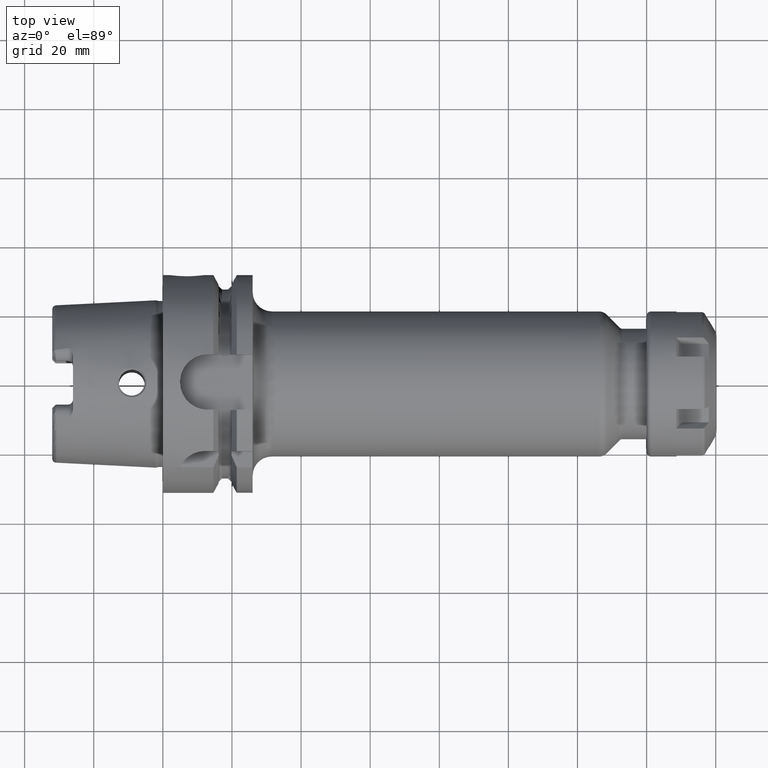
[diagram: clean part render]
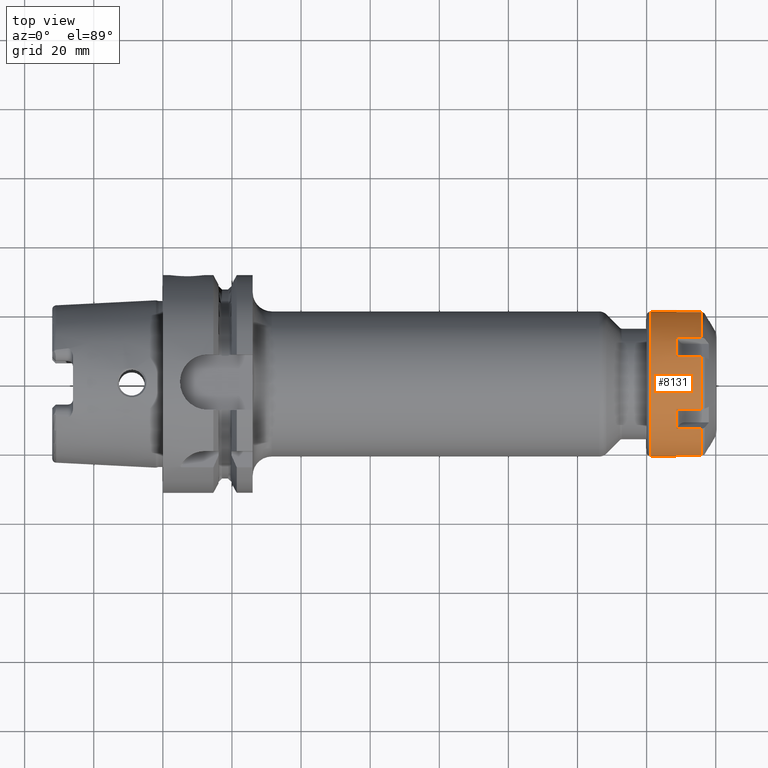
[diagram: same view with one face highlighted and labeled with its STEP entity id]
A machine part, top view. The second image highlights one B-rep face of the part: STEP entity #8131.
In plain terms, the highlighted cylindrical surface (partial cylindrical patch) has radius 21 mm, axis along (1, 0, 0).
Its self-contained STEP definition (entity closure, byte-faithful):
#6765=CARTESIAN_POINT('',(1.581421054838E1,1.317189611779E1,1.635546247167E1));
#6782=CARTESIAN_POINT('',(1.581421054838E1,2.075019405E1,3.229465418179E0));
#6784=CARTESIAN_POINT('',(1.581421054838E1,-7.578297932215E0,1.958492788985E1));
#6804=CARTESIAN_POINT('',(1.581421054838E1,7.578297932215E0,1.958492788985E1));
#6806=CARTESIAN_POINT('',(1.581421054838E1,-2.075019405E1,3.229465418179E0));
#6826=CARTESIAN_POINT('',(1.581421054838E1,-1.317189611779E1,1.635546247167E1));
#6899=DIRECTION('',(9.999999999998E-1,-6.709444935676E-7,-9.098410445458E-8));
#6900=VECTOR('',#6899,7.214212575504E0);
#6901=CARTESIAN_POINT('',(8.599997972873E0,1.317190095812E1,1.635546312805E1));
#6902=LINE('',#6901,#6900);
#6915=DIRECTION('',(-1.E0,0.E0,0.E0));
#6916=VECTOR('',#6915,7.214210815093E0);
#6917=CARTESIAN_POINT('',(1.581421054838E1,7.578297932215E0,1.958492788985E1));
#6918=LINE('',#6917,#6916);
#7024=DIRECTION('',(1.E0,0.E0,0.E0));
#7025=VECTOR('',#7024,7.214210548375E0);
#7026=CARTESIAN_POINT('',(8.6E0,-2.075019405E1,3.229465418179E0));
#7027=LINE('',#7026,#7025);
#7065=DIRECTION('',(-1.E0,9.411549393136E-12,6.000804948597E-11));
#7066=VECTOR('',#7065,7.350000000040E0);
#7067=CARTESIAN_POINT('',(8.600000000040E0,2.099999999993E1,
-4.377820052165E-10));
#7068=LINE('',#7067,#7066);
#7074=DIRECTION('',(-1.E0,-9.436200875805E-12,-6.000654573246E-11));
#7075=VECTOR('',#7074,7.350000000040E0);
#7076=CARTESIAN_POINT('',(8.600000000040E0,-2.099999999993E1,
4.377679851591E-10));
#7077=LINE('',#7076,#7075);
#7145=DIRECTION('',(-1.E0,1.969841969528E-14,0.E0));
#7146=VECTOR('',#7145,7.214210548375E0);
#7147=CARTESIAN_POINT('',(1.581421054838E1,2.075019405E1,3.229465418179E0));
#7148=LINE('',#7147,#7146);
#7160=CARTESIAN_POINT('',(8.6E0,0.E0,0.E0));
#7161=DIRECTION('',(-1.E0,0.E0,0.E0));
#7162=DIRECTION('',(0.E0,-1.E0,0.E0));
#7163=AXIS2_PLACEMENT_3D('',#7160,#7161,#7162);
#7165=CARTESIAN_POINT('',(1.25E0,0.E0,0.E0));
#7166=DIRECTION('',(-1.E0,0.E0,0.E0));
#7167=DIRECTION('',(0.E0,-1.E0,0.E0));
#7168=AXIS2_PLACEMENT_3D('',#7165,#7166,#7167);
#7170=CARTESIAN_POINT('',(8.6E0,0.E0,0.E0));
#7171=DIRECTION('',(-1.E0,0.E0,0.E0));
#7172=DIRECTION('',(0.E0,9.881044785716E-1,1.537840675323E-1));
#7173=AXIS2_PLACEMENT_3D('',#7170,#7171,#7172);
#7175=CARTESIAN_POINT('',(1.581421054838E1,-1.792614389339E-14,0.E0));
#7176=DIRECTION('',(-1.E0,0.E0,0.E0));
#7177=DIRECTION('',(0.E0,6.272331484661E-1,7.788315462700E-1));
#7178=AXIS2_PLACEMENT_3D('',#7175,#7176,#7177);
#7180=CARTESIAN_POINT('',(1.581421054838E1,-1.792614389339E-14,0.E0));
#7181=DIRECTION('',(-1.E0,0.E0,0.E0));
#7182=DIRECTION('',(0.E0,-3.608713301055E-1,9.326156138023E-1));
#7183=AXIS2_PLACEMENT_3D('',#7180,#7181,#7182);
#7185=CARTESIAN_POINT('',(1.581421054838E1,-1.792614389339E-14,0.E0));
#7186=DIRECTION('',(-1.E0,0.E0,0.E0));
#7187=DIRECTION('',(0.E0,-9.881044785716E-1,1.537840675323E-1));
#7188=AXIS2_PLACEMENT_3D('',#7185,#7186,#7187);
#7264=CARTESIAN_POINT('',(8.600000222181E0,7.035000558750E-6,
1.879731957107E-6));
#7265=DIRECTION('',(-1.E0,0.E0,0.E0));
#7266=DIRECTION('',(0.E0,3.608710688571E-1,9.326157148911E-1));
#7267=AXIS2_PLACEMENT_3D('',#7264,#7265,#7266);
#7283=DIRECTION('',(9.999999999979E-1,-1.452794314702E-6,1.445246590338E-6));
#7284=VECTOR('',#7283,7.214202484701E0);
#7285=CARTESIAN_POINT('',(8.600008063689E0,-7.578287451463E0,1.958491746355E1));
#7286=LINE('',#7285,#7284);
#7299=DIRECTION('',(-1.E0,0.E0,0.E0));
#7300=VECTOR('',#7299,7.214210890546E0);
#7301=CARTESIAN_POINT('',(1.581421054838E1,-1.317189611779E1,1.635546247167E1));
#7302=LINE('',#7301,#7300);
#7335=CARTESIAN_POINT('',(8.600000318507E0,1.804967964893E-5,
-1.352930521446E-5));
#7336=DIRECTION('',(-1.E0,0.E0,0.E0));
#7337=DIRECTION('',(0.E0,-6.272333551021E-1,7.788313798553E-1));
#7338=AXIS2_PLACEMENT_3D('',#7335,#7336,#7337);
#7422=CARTESIAN_POINT('',(1.25E0,2.1E1,0.E0));
#7423=CARTESIAN_POINT('',(1.25E0,-2.1E1,0.E0));
#7424=VERTEX_POINT('',#7422);
#7425=VERTEX_POINT('',#7423);
#7431=VERTEX_POINT('',#6782);
#7433=CARTESIAN_POINT('',(8.6E0,2.1E1,0.E0));
#7435=VERTEX_POINT('',#7433);
#7437=CARTESIAN_POINT('',(8.6E0,2.075019405E1,3.229465418179E0));
#7438=VERTEX_POINT('',#7437);
#7447=VERTEX_POINT('',#6765);
#7448=VERTEX_POINT('',#6804);
#7449=CARTESIAN_POINT('',(8.600000222181E0,7.578297626635E0,1.958492710012E1));
#7450=CARTESIAN_POINT('',(8.600000222181E0,1.317189658068E1,1.635546304645E1));
#7451=VERTEX_POINT('',#7449);
#7452=VERTEX_POINT('',#7450);
#7461=VERTEX_POINT('',#6784);
#7462=VERTEX_POINT('',#6826);
#7463=CARTESIAN_POINT('',(8.600000318507E0,-1.317189540004E1,1.635546158045E1));
#7464=CARTESIAN_POINT('',(8.600000318507E0,-7.578298503418E0,1.958492936603E1));
#7465=VERTEX_POINT('',#7463);
#7466=VERTEX_POINT('',#7464);
#7476=VERTEX_POINT('',#6806);
#7478=CARTESIAN_POINT('',(8.6E0,-2.1E1,0.E0));
#7479=CARTESIAN_POINT('',(8.6E0,-2.075019405E1,3.229465418179E0));
#7480=VERTEX_POINT('',#7478);
#7481=VERTEX_POINT('',#7479);
#8101=CARTESIAN_POINT('',(-1.E0,0.E0,0.E0));
#8102=DIRECTION('',(1.E0,0.E0,0.E0));
#8103=DIRECTION('',(0.E0,-1.E0,0.E0));
#8104=AXIS2_PLACEMENT_3D('',#8101,#8102,#8103);
#8105=CYLINDRICAL_SURFACE('',#8104,2.1E1);
#8107=ORIENTED_EDGE('',*,*,#8106,.F.);
#8108=ORIENTED_EDGE('',*,*,#7990,.T.);
#8110=ORIENTED_EDGE('',*,*,#8109,.T.);
#8111=ORIENTED_EDGE('',*,*,#7986,.F.);
#8113=ORIENTED_EDGE('',*,*,#8112,.F.);
#8114=ORIENTED_EDGE('',*,*,#8081,.F.);
#8115=ORIENTED_EDGE('',*,*,#7678,.F.);
#8116=ORIENTED_EDGE('',*,*,#7771,.F.);
#8118=ORIENTED_EDGE('',*,*,#8117,.F.);
#8119=ORIENTED_EDGE('',*,*,#7839,.F.);
#8120=ORIENTED_EDGE('',*,*,#7694,.F.);
#8122=ORIENTED_EDGE('',*,*,#8121,.F.);
#8124=ORIENTED_EDGE('',*,*,#8123,.F.);
#8126=ORIENTED_EDGE('',*,*,#8125,.F.);
#8127=ORIENTED_EDGE('',*,*,#7710,.F.);
#8128=ORIENTED_EDGE('',*,*,#7899,.F.);
#8129=EDGE_LOOP('',(#8107,#8108,#8110,#8111,#8113,#8114,#8115,#8116,#8118,#8119,
#8120,#8122,#8124,#8126,#8127,#8128));
#8130=FACE_OUTER_BOUND('',#8129,.F.);
#8131=ADVANCED_FACE('',(#8130),#8105,.T.);
#7164=CIRCLE('',#7163,2.1E1);
#7169=CIRCLE('',#7168,2.1E1);
#7174=CIRCLE('',#7173,2.1E1);
#7179=CIRCLE('',#7178,2.1E1);
#7184=CIRCLE('',#7183,2.1E1);
#7189=CIRCLE('',#7188,2.1E1);
#7268=CIRCLE('',#7267,2.099999486142E1);
#7339=CIRCLE('',#7338,2.100002071410E1);
#7678=EDGE_CURVE('',#7447,#7431,#7179,.T.);
#7694=EDGE_CURVE('',#7461,#7448,#7184,.T.);
#7710=EDGE_CURVE('',#7476,#7462,#7189,.T.);
#7771=EDGE_CURVE('',#7452,#7447,#6902,.T.);
#7839=EDGE_CURVE('',#7448,#7451,#6918,.T.);
#7899=EDGE_CURVE('',#7481,#7476,#7027,.T.);
#7986=EDGE_CURVE('',#7435,#7424,#7068,.T.);
#7990=EDGE_CURVE('',#7480,#7425,#7077,.T.);
#8081=EDGE_CURVE('',#7431,#7438,#7148,.T.);
#8106=EDGE_CURVE('',#7480,#7481,#7164,.T.);
#8109=EDGE_CURVE('',#7425,#7424,#7169,.T.);
#8112=EDGE_CURVE('',#7438,#7435,#7174,.T.);
#8117=EDGE_CURVE('',#7451,#7452,#7268,.T.);
#8121=EDGE_CURVE('',#7466,#7461,#7286,.T.);
#8123=EDGE_CURVE('',#7465,#7466,#7339,.T.);
#8125=EDGE_CURVE('',#7462,#7465,#7302,.T.);